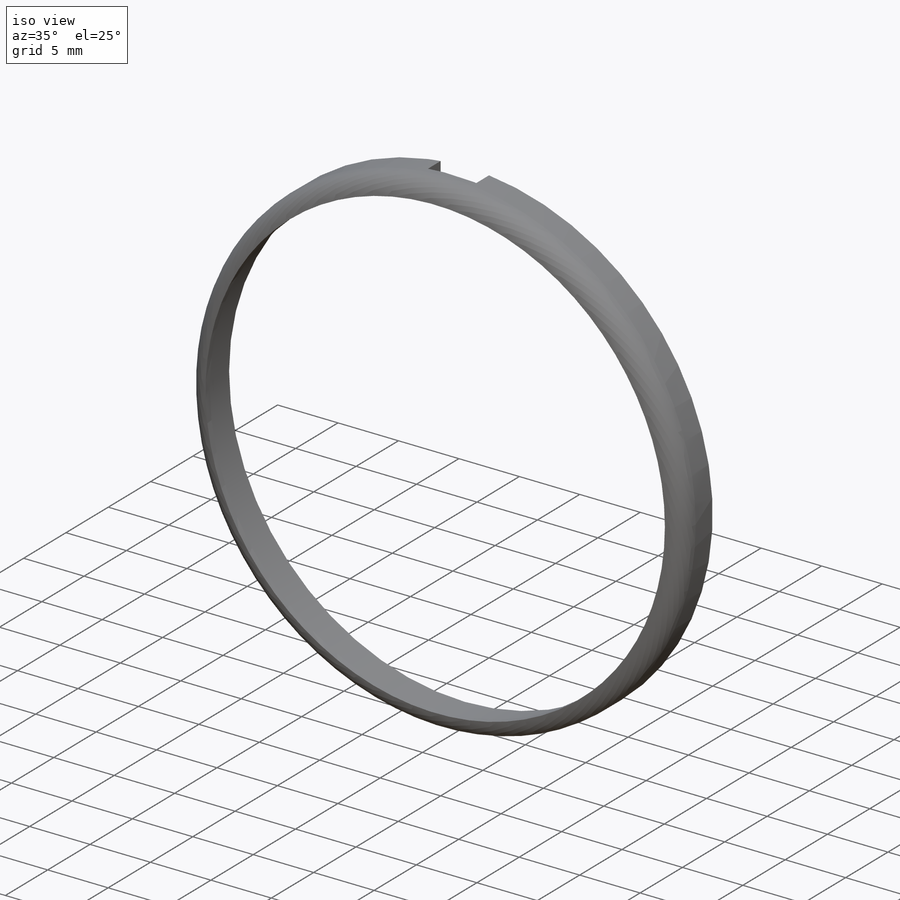
[diagram: iso view]
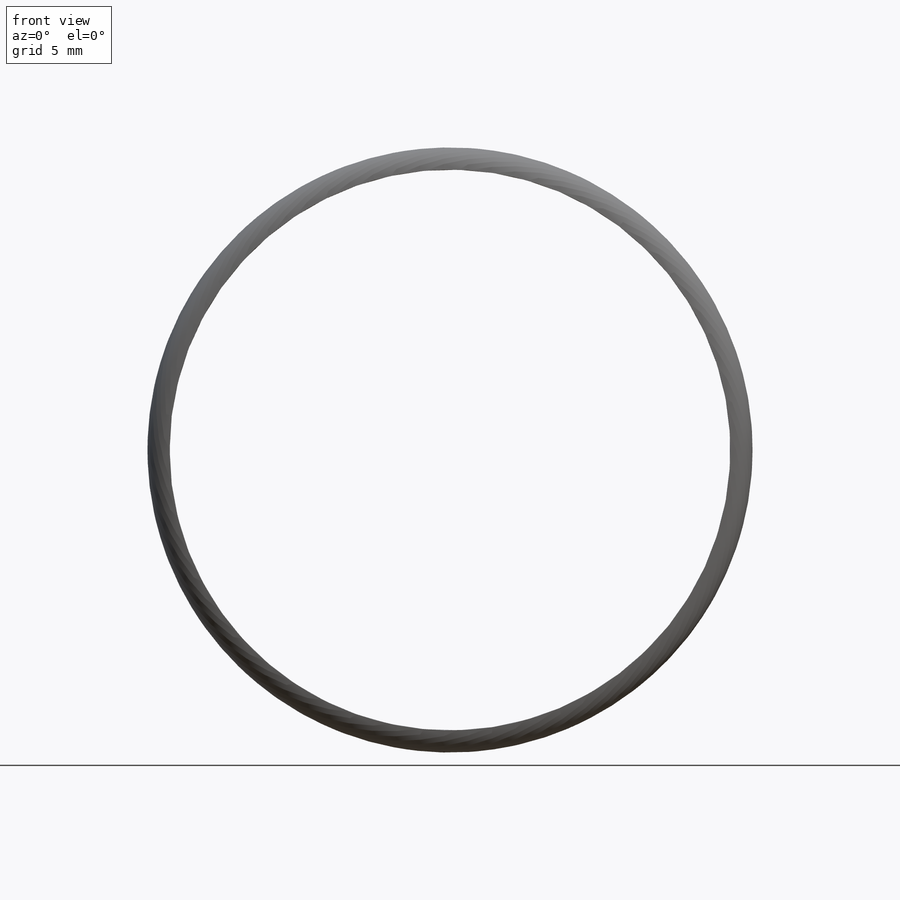
[diagram: front view]
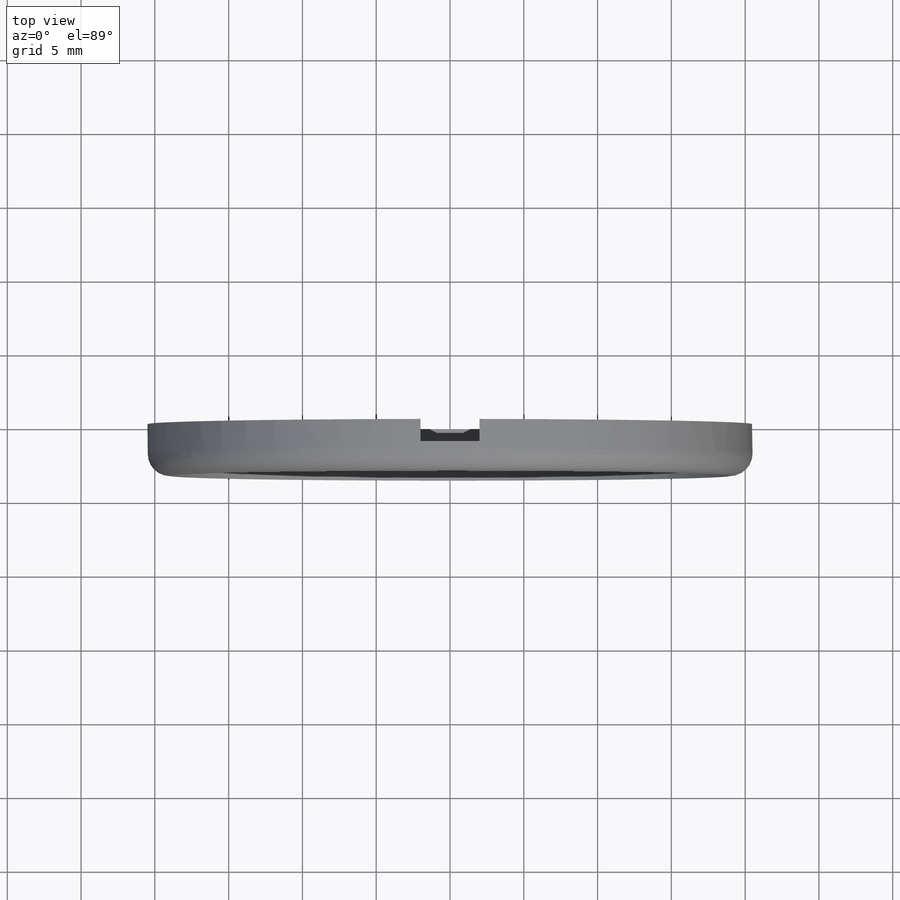
[diagram: top view]
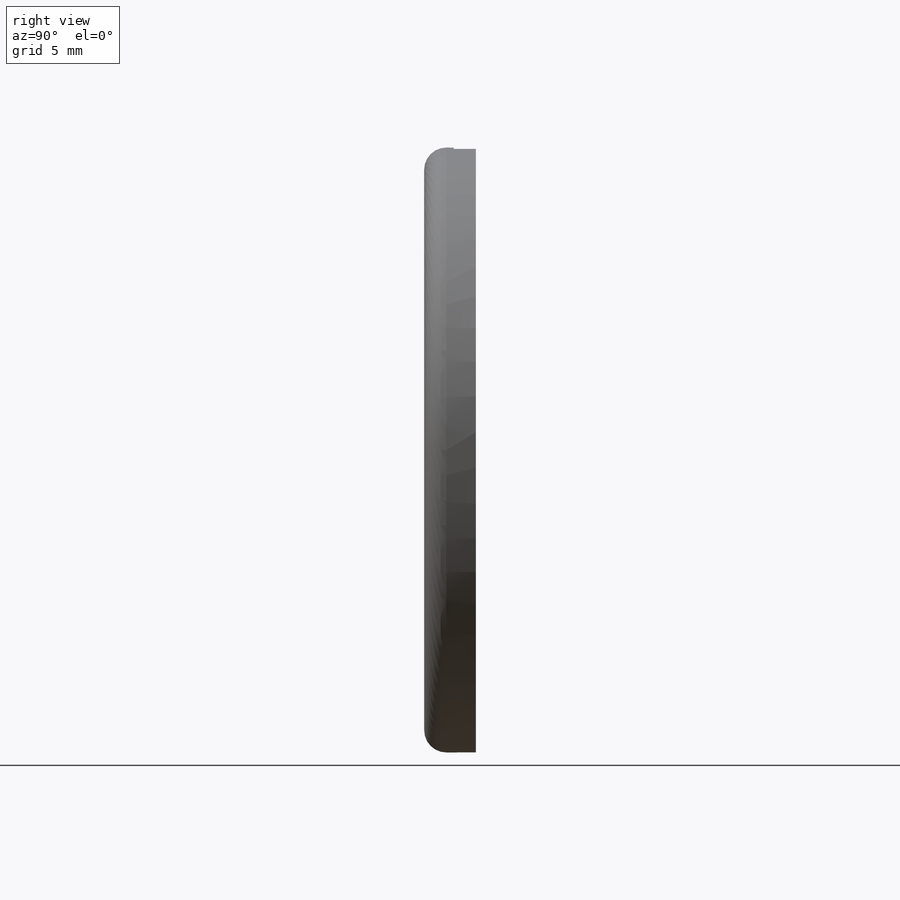
[diagram: right view]
SOLIDWORKS PART (.sldprt)
format: sldprt  version: not decoded by parser v0  size: 238,592 bytes
history: native  units: mm
features: sketch x4, cut_extrude x3, material x1, extrude x1, plane x1, fillet x1 (+11 scaffold rows collapsed)
feature tree (22):
  scaffold x11  (default folders/planes/origin — collapsed)
  material  "Material <sin especificar>"
  sketch  "Croquis1"  dims[D1=41.0mm]
  extrude  "Saliente-Extruir1"  Depth=3.5mm
  plane  "Plano1"  Offset=20mm
  sketch  "Croquis3"  dims[D1=4.0mm D2=1.5mm]
  cut_extrude  "Cortar-Extruir2"  Depth=3mm
  sketch  "Croquis4"  dims[D1=39.0mm]
  cut_extrude  "Cortar-Extruir3"  Depth=3mm
  sketch  "Croquis5"  dims[D1=38.0mm]
  cut_extrude  "Cortar-Extruir4"  Depth=3mm
  fillet  "Redondeo1"  Radius=1.5mm
decode coverage: 9 of 9 modeling features carry decoded parameters
note: suppression state not decoded; provenance and decode notes live in map.json
